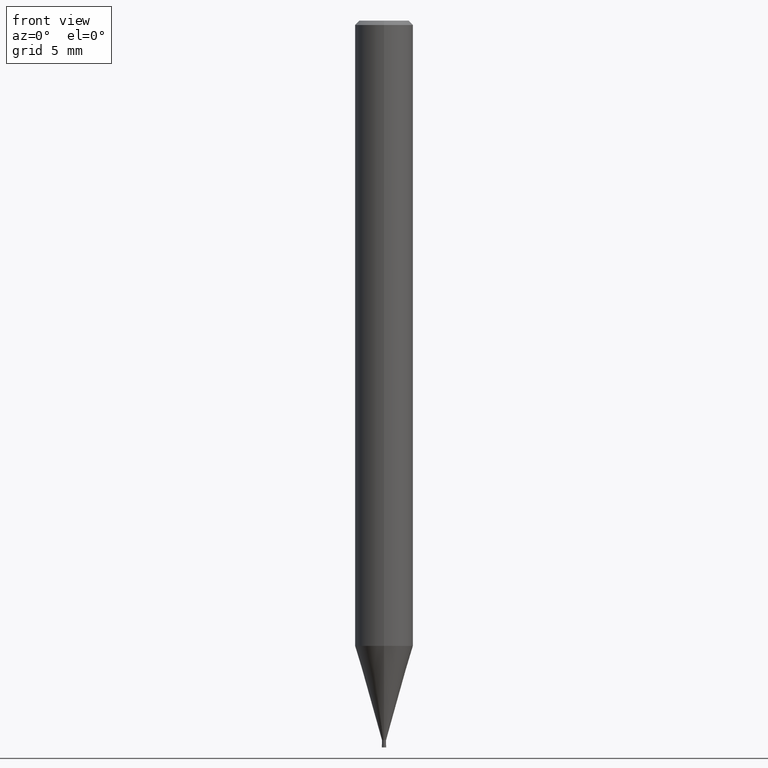
[diagram: clean part render]
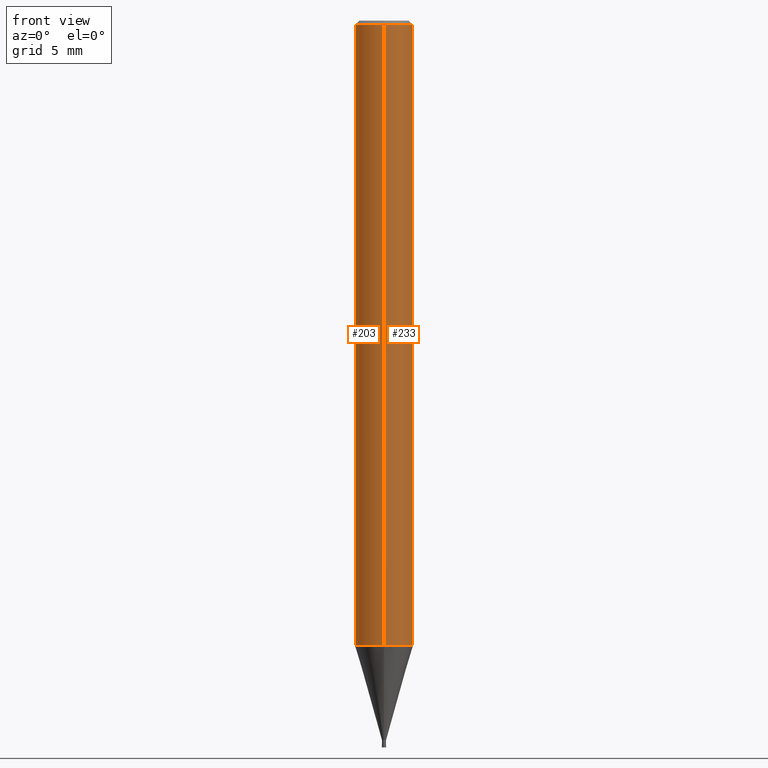
[diagram: same view with one multi-face feature highlighted, each face labeled with its STEP entity id]
A machine part, front view. The highlighted faces form ONE feature: a constant-radius fillet chain: 2 tangent blend faces with common blend radius 2 mm. The faces share edges in the B-rep.
Their STEP definitions:
[1] entity #203 (Cylinder):
#147=EDGE_CURVE('',#243,#285,#382,.T.);
#173=EDGE_CURVE('',#243,#223,#415,.T.);
#203=ADVANCED_FACE('',(#447),#448,.T.);
#223=VERTEX_POINT('',#469);
#235=EDGE_CURVE('',#293,#223,#483,.T.);
#243=VERTEX_POINT('',#494);
#285=VERTEX_POINT('',#540);
#293=VERTEX_POINT('',#550);
#343=EDGE_CURVE('',#285,#293,#606,.T.);
#382=LINE('',#643,#644);
#415=CIRCLE('',#681,2.0);
#447=FACE_OUTER_BOUND('',#726,.T.);
#448=CYLINDRICAL_SURFACE('',#727,2.0);
#469=CARTESIAN_POINT('',(0.0,2.0,-43.003));
#483=LINE('',#770,#771);
#494=CARTESIAN_POINT('',(2.44921270764475E-016,-2.0,-43.003));
#540=CARTESIAN_POINT('',(2.44921270764475E-016,-2.0,-0.289999999999999));
#550=CARTESIAN_POINT('',(0.0,2.0,-0.289999999999999));
#606=CIRCLE('',#926,2.0);
#643=CARTESIAN_POINT('',(2.44921270764475E-016,-2.0,-21.6465));
#644=VECTOR('',#949,1.0);
#681=AXIS2_PLACEMENT_3D('',#1006,#1007,#1008);
#726=EDGE_LOOP('',(#1050,#1051,#1052,#1053));
#727=AXIS2_PLACEMENT_3D('',#1054,#1055,#1056);
#770=CARTESIAN_POINT('',(-2.44921270764475E-016,2.0,-21.6465));
#771=VECTOR('',#1101,1.0);
#926=AXIS2_PLACEMENT_3D('',#1242,#1243,#1244);
#949=DIRECTION('',(-0.0,-0.0,1.0));
#1006=CARTESIAN_POINT('',(0.0,0.0,-43.003));
#1007=DIRECTION('',(0.0,0.0,-1.0));
#1008=DIRECTION('',(0.0,1.0,0.0));
#1050=ORIENTED_EDGE('',*,*,#235,.T.);
#1051=ORIENTED_EDGE('',*,*,#173,.F.);
#1052=ORIENTED_EDGE('',*,*,#147,.T.);
#1053=ORIENTED_EDGE('',*,*,#343,.T.);
#1054=CARTESIAN_POINT('',(0.0,0.0,-21.6465));
#1055=DIRECTION('',(-0.0,-0.0,1.0));
#1056=DIRECTION('',(0.0,1.0,0.0));
#1101=DIRECTION('',(0.0,0.0,-1.0));
#1242=CARTESIAN_POINT('',(0.0,0.0,-0.289999999999999));
#1243=DIRECTION('',(0.0,0.0,-1.0));
#1244=DIRECTION('',(0.0,1.0,0.0));
[2] entity #233 (Cylinder):
#147=EDGE_CURVE('',#243,#285,#382,.T.);
#223=VERTEX_POINT('',#469);
#233=ADVANCED_FACE('',(#480),#481,.T.);
#235=EDGE_CURVE('',#293,#223,#483,.T.);
#243=VERTEX_POINT('',#494);
#271=EDGE_CURVE('',#223,#243,#525,.T.);
#285=VERTEX_POINT('',#540);
#293=VERTEX_POINT('',#550);
#313=EDGE_CURVE('',#293,#285,#572,.T.);
#382=LINE('',#643,#644);
#469=CARTESIAN_POINT('',(0.0,2.0,-43.003));
#480=FACE_OUTER_BOUND('',#766,.T.);
#481=CYLINDRICAL_SURFACE('',#767,2.0);
#483=LINE('',#770,#771);
#494=CARTESIAN_POINT('',(2.44921270764475E-016,-2.0,-43.003));
#525=CIRCLE('',#821,2.0);
#540=CARTESIAN_POINT('',(2.44921270764475E-016,-2.0,-0.289999999999999));
#550=CARTESIAN_POINT('',(0.0,2.0,-0.289999999999999));
#572=CIRCLE('',#884,2.0);
#643=CARTESIAN_POINT('',(2.44921270764475E-016,-2.0,-21.6465));
#644=VECTOR('',#949,1.0);
#766=EDGE_LOOP('',(#1094,#1095,#1096,#1097));
#767=AXIS2_PLACEMENT_3D('',#1098,#1099,#1100);
#770=CARTESIAN_POINT('',(-2.44921270764475E-016,2.0,-21.6465));
#771=VECTOR('',#1101,1.0);
#821=AXIS2_PLACEMENT_3D('',#1151,#1152,#1153);
#884=AXIS2_PLACEMENT_3D('',#1198,#1199,#1200);
#949=DIRECTION('',(-0.0,-0.0,1.0));
#1094=ORIENTED_EDGE('',*,*,#235,.F.);
#1095=ORIENTED_EDGE('',*,*,#313,.T.);
#1096=ORIENTED_EDGE('',*,*,#147,.F.);
#1097=ORIENTED_EDGE('',*,*,#271,.F.);
#1098=CARTESIAN_POINT('',(0.0,0.0,-21.6465));
#1099=DIRECTION('',(-0.0,-0.0,1.0));
#1100=DIRECTION('',(0.0,1.0,0.0));
#1101=DIRECTION('',(0.0,0.0,-1.0));
#1151=CARTESIAN_POINT('',(0.0,0.0,-43.003));
#1152=DIRECTION('',(0.0,0.0,-1.0));
#1153=DIRECTION('',(0.0,1.0,0.0));
#1198=CARTESIAN_POINT('',(0.0,0.0,-0.289999999999999));
#1199=DIRECTION('',(0.0,0.0,-1.0));
#1200=DIRECTION('',(0.0,1.0,0.0));